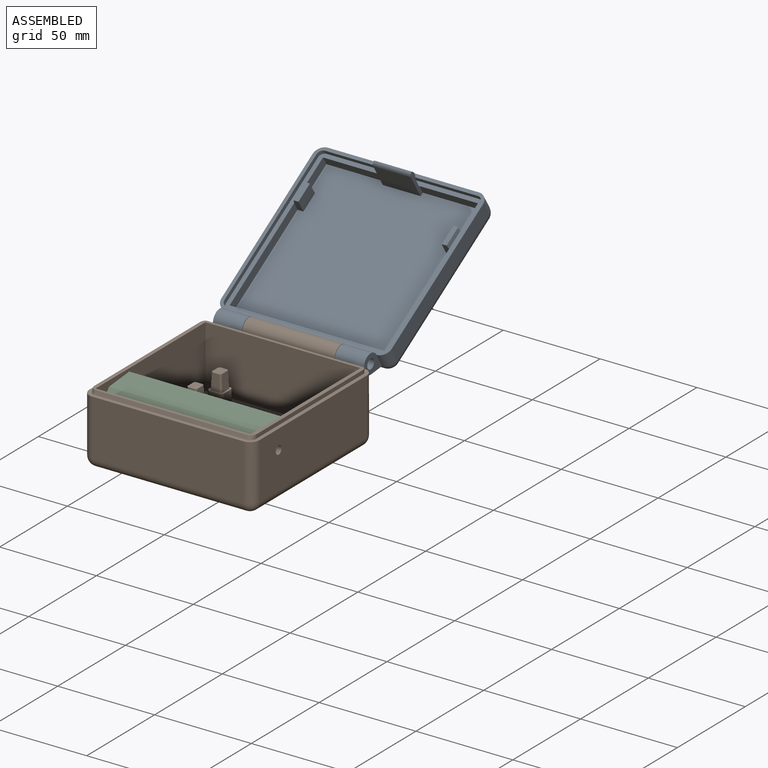
[diagram: assembled view]
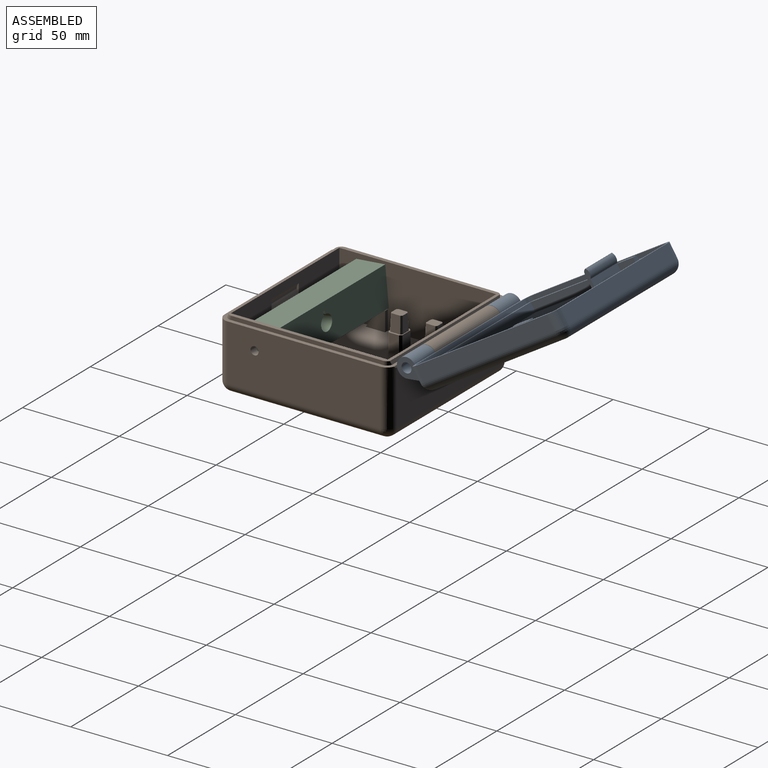
[diagram: assembled view, second angle]
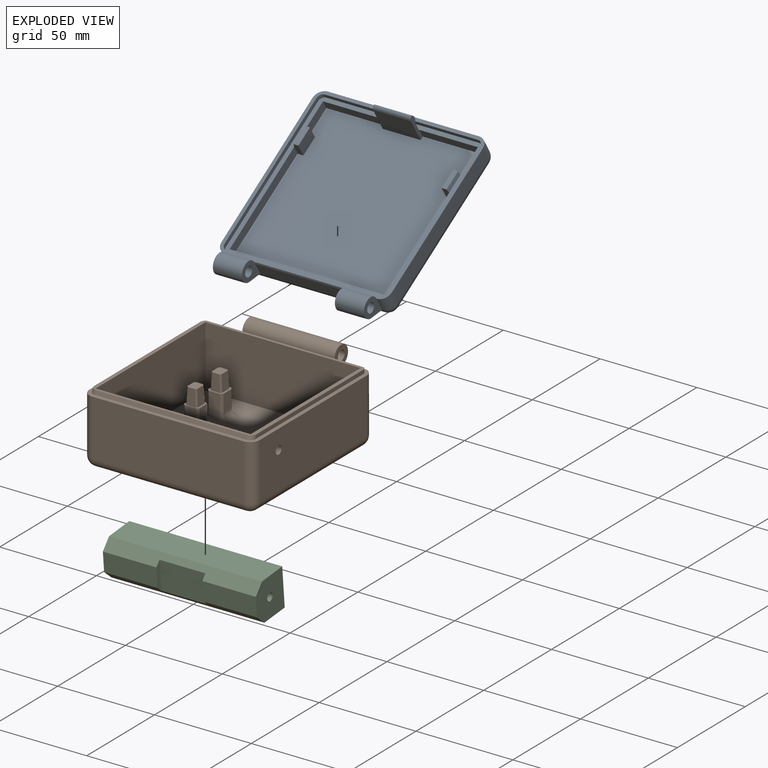
[diagram: exploded view]
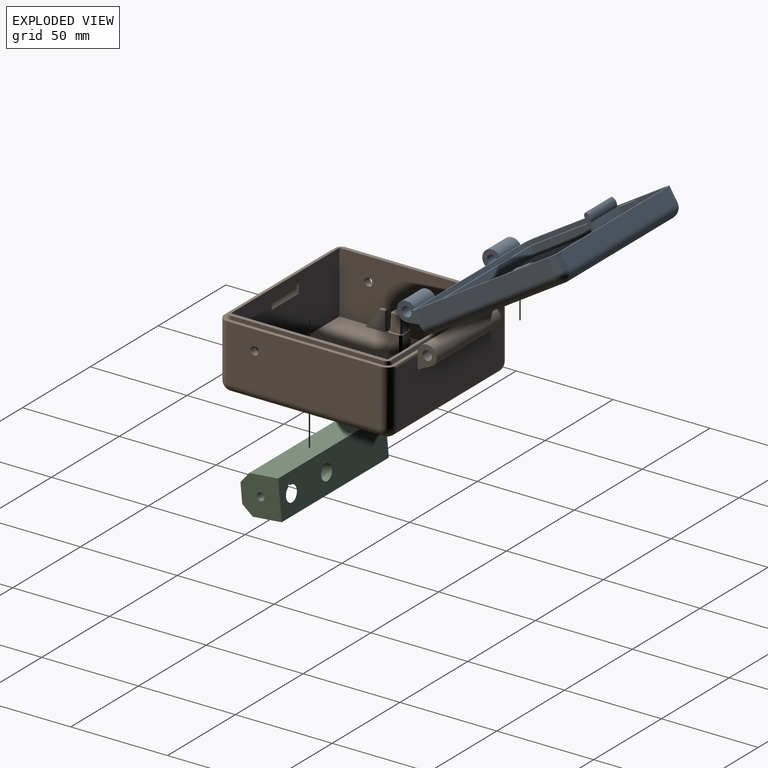
[diagram: exploded view, second angle]
ASSEMBLY  parts=3 mates=2
PART A: 63 faces, bbox 88x99x21.3 mm
  f0: plane 89x88mm, normal (0,0,-1), area 595.1mm2, adj f3,f16,f17,f18,f20,f22,f25,f31
  f1: cylinder r=2.55mm len=15mm, axis (1,0,0), area 240.3mm2, adj f47,f48
  f2: plane 15x7.19mm, normal (0,-0.44,0.9), area 120mm2, adj f3,f24,f47,f48
  f3: cylinder r=5mm len=15mm, axis (1,0,0), area 319.4mm2, adj f0,f2,f47,f48
  f4: plane 7x3mm, normal (0,1,0), area 20.4mm2, adj f7,f8,f56,f58,f60
  f5: plane 7x3mm, normal (0,1,0), area 20.5mm2, adj f6,f8,f9,f55,f59
  f6: plane 10x2.5mm, normal (0,0,-1), area 25mm2, adj f5,f54,f55,f59
  f7: plane 15x4.8mm, normal (1,0,0), area 72mm2, adj f4,f8,f13,f14
  f8: plane 81x80mm, normal (0,0,-1), area 6382.9mm2, adj f4,f5,f7,f9,f11,f12,f14,f36
  f9: plane 15x4.8mm, normal (-1,0,0), area 72mm2, adj f5,f8,f13,f37
  f10: plane 19.5x5.59mm, normal (0,1,0), area 109mm2, adj f11,f12,f13,f52
  f11: plane 15.3x2.7mm, normal (-1,0,0), area 29.5mm2, adj f8,f10,f13,f14,f50,f51,f52,f53
  f12: plane 15.3x2.7mm, normal (1,0,0), area 29.5mm2, adj f8,f10,f13,f37,f50,f51,f52,f53
  f13: plane 85.4x84.4mm, normal (0,0,-1), area 724.9mm2, adj f7,f9,f10,f11,f12,f14,f32,f33
  f14: plane 30.25x4.8mm, normal (0,-1,0), area 145.2mm2, adj f7,f8,f11,f13
  f15: cylinder r=2.55mm len=15mm, axis (1,0,0), area 240.3mm2, adj f46,f49
  f16: plane 78x8mm, normal (0,1,0), area 624mm2, adj f0,f22,f28,f31
  f17: plane 79x8mm, normal (-1,0,0), area 632mm2, adj f0,f25,f29,f31
  f18: plane 79x8mm, normal (1,0,0), area 632mm2, adj f0,f20,f22,f23
  f19: plane 79x78mm, normal (0,0,1), area 6162mm2, adj f23,f24,f28,f29
  f20: cylinder r=5mm len=8mm, axis (0,0,1), area 62.8mm2, adj f0,f18,f21,f47
  f21: sphere r=5mm, area 39.3mm2, adj f20,f23,f24
  f22: cylinder r=5mm len=8mm, axis (0,0,-1), area 62.8mm2, adj f0,f16,f18,f26
  f23: cylinder r=5mm len=79mm, axis (0,-1,0), area 620.5mm2, adj f18,f19,f21,f26
  f24: cylinder r=5mm len=78mm, axis (-1,0,0), area 612.6mm2, adj f2,f19,f21,f27,f44,f61
  f25: cylinder r=5mm len=8mm, axis (0,0,-1), area 62.8mm2, adj f0,f17,f27,f46
  f26: sphere r=5mm, area 39.3mm2, adj f22,f23,f28
  f27: sphere r=5mm, area 39.3mm2, adj f24,f25,f29
  f28: cylinder r=5mm len=78mm, axis (1,0,0), area 612.6mm2, adj f16,f19,f26,f30
  f29: cylinder r=5mm len=79mm, axis (0,1,0), area 620.5mm2, adj f17,f19,f27,f30
  f30: sphere r=5mm, area 39.3mm2, adj f28,f29,f31
  f31: cylinder r=5mm len=8mm, axis (0,0,1), area 62.8mm2, adj f0,f16,f17,f30
  f32: plane 79.8x2.2mm, normal (-1,0,0), area 175.6mm2, adj f0,f13,f40,f43
  f33: plane 78.8x2.2mm, normal (0,1,0), area 173.4mm2, adj f0,f13,f40,f41
  f34: plane 79.8x2.2mm, normal (1,0,0), area 175.6mm2, adj f0,f13,f41,f42
  f35: plane 78.8x2.2mm, normal (0,-1,0), area 173.4mm2, adj f0,f13,f42,f43
  f36: plane 56x4.8mm, normal (-1,0,0), area 268.8mm2, adj f8,f13,f39,f54
  f37: plane 30.25x4.8mm, normal (0,-1,0), area 145.2mm2, adj f8,f9,f12,f13
  f38: plane 56x4.8mm, normal (1,0,0), area 268.8mm2, adj f8,f13,f39,f57
  f39: plane 80x4.8mm, normal (0,1,0), area 384mm2, adj f8,f13,f36,f38
  f40: cylinder r=2.8mm len=2.8mm, axis (0,0,1), area 9.7mm2, adj f0,f13,f32,f33
  f41: cylinder r=2.8mm len=2.8mm, axis (0,0,-1), area 9.7mm2, adj f0,f13,f33,f34
  f42: cylinder r=2.8mm len=2.8mm, axis (0,0,1), area 9.7mm2, adj f0,f13,f34,f35
  f43: cylinder r=2.8mm len=2.8mm, axis (0,0,-1), area 9.7mm2, adj f0,f13,f32,f35
  f44: plane 15x7.19mm, normal (0,-0.44,0.9), area 120mm2, adj f24,f45,f46,f49
  f45: cylinder r=5mm len=15mm, axis (1,0,0), area 319.4mm2, adj f0,f44,f46,f49
  f46: plane 13x10mm, normal (-1,0,0), area 72.8mm2, adj f15,f25,f44,f45
  f47: plane 13x10mm, normal (1,0,0), area 72.8mm2, adj f1,f2,f3,f20
  f48: plane 13x10.3mm, normal (-1,0,0), area 73mm2, adj f0,f1,f2,f3,f61,f62
  f49: plane 13x10.3mm, normal (1,0,0), area 73mm2, adj f0,f15,f44,f45,f61,f62
  f50: plane 19.5x0.09mm, normal (0,1,0), area 1.8mm2, adj f11,f12,f52,f53
  f51: plane 19.5x13.32mm, normal (0,-1,0), area 259.8mm2, adj f8,f11,f12,f53
  f52: cylinder r=3.4mm len=19.5mm, axis (1,0,0), area 104.4mm2, adj f10,f11,f12,f50
  f53: cylinder r=2mm len=19.5mm, axis (1,0,0), area 55.4mm2, adj f11,f12,f50,f51
  f54: plane 7x3mm, normal (0,-1,0), area 20.4mm2, adj f6,f8,f36,f55,f59
  f55: plane 10x7mm, normal (-1,0,0), area 70mm2, adj f5,f6,f8,f54
  f56: plane 10x7mm, normal (1,0,0), area 70mm2, adj f4,f8,f57,f58
  f57: plane 7x3mm, normal (0,-1,0), area 20.5mm2, adj f8,f38,f56,f58,f60
  f58: plane 10x2.5mm, normal (0,0,-1), area 25mm2, adj f4,f56,f57,f60
  f59: plane 10x2.2mm, normal (0.98,0,-0.22), area 22.6mm2, adj f5,f6,f13,f54
  f60: plane 10x2.2mm, normal (-0.98,0,-0.22), area 22.6mm2, adj f4,f13,f57,f58
  f61: plane 48x7mm, normal (0,-1,0), area 336mm2, adj f24,f48,f49,f62
  f62: plane 48x1mm, normal (0,-0.96,-0.29), area 50.1mm2, adj f0,f48,f49,f61
PART B: 104 faces, bbox 88x99x39.2 mm
  f0: plane 10x10mm, normal (-1,0,0), area 65mm2, adj f17,f29,f30,f84
  f1: plane 3x2mm, normal (0,0,1), area 6mm2, adj f22,f27,f28,f83
  f2: plane 89x88mm, normal (0,0,1), area 668.9mm2, adj f5,f7,f18,f19,f20,f43,f45,f48
  f3: cylinder r=2.5mm len=47.6mm, axis (-1,0,0), area 747.7mm2, adj f78,f79
  f4: plane 47.6x7.19mm, normal (0,0.44,-0.9), area 380.8mm2, adj f5,f6,f78,f79
  f5: cylinder r=5mm len=47.6mm, axis (-1,0,0), area 1023.1mm2, adj f2,f4,f78,f79
  f6: plane 78x28mm, normal (0,1,0), area 1860.3mm2, adj f4,f45,f51,f54,f78,f79,f102,f103
  f7: plane 78.81x2mm, normal (-1,0,0), area 156.9mm2, adj f2,f56,f75,f77
  f8: plane 6x5.1mm, normal (0,0,1), area 29.6mm2, adj f9,f10,f14,f42,f57,f58,f59,f60
  f9: plane 8.5x5.1mm, normal (-1,0,0.05), area 41.3mm2, adj f8,f35,f58,f60
  f10: plane 8.5x5.1mm, normal (1,0,0.05), area 41.3mm2, adj f8,f35,f57,f59
  f11: plane 6x5.1mm, normal (0,0,1), area 29.6mm2, adj f12,f13,f40,f41,f61,f62,f63,f64
  f12: plane 8.5x4.6mm, normal (0,1,0.03), area 35.3mm2, adj f11,f15,f61,f62
  f13: plane 8.5x4.6mm, normal (0,-1,0.03), area 35.3mm2, adj f11,f15,f63,f64
  f14: plane 8.5x4.6mm, normal (0,-1,0.03), area 35.3mm2, adj f8,f35,f57,f58
  f15: plane 8x7.21mm, normal (0,0,1), area 17.7mm2, adj f12,f13,f36,f37,f38,f39,f40,f41
  f16: plane 81x32mm, normal (-1,0,0), area 2513.1mm2, adj f17,f23,f24,f25,f29,f30,f56,f84
  f17: plane 81x80mm, normal (0,0,1), area 5985.3mm2, adj f0,f16,f22,f23,f24,f27,f28,f29
  f18: plane 79x29mm, normal (1,0,0), area 2277.1mm2, adj f2,f25,f48,f52,f54
  f19: plane 79x29mm, normal (-1,0,0), area 2277.1mm2, adj f2,f26,f43,f45,f46
  f20: plane 78x29mm, normal (0,-1,0), area 2262mm2, adj f2,f43,f47,f48
  f21: plane 79x78mm, normal (0,0,-1), area 6162mm2, adj f46,f47,f51,f52
  f22: plane 81x32mm, normal (1,0,0), area 2513.1mm2, adj f1,f17,f23,f24,f26,f28,f56,f83
  f23: plane 80x32mm, normal (0,-1,0), area 2560mm2, adj f16,f17,f22,f56
  f24: plane 80x32mm, normal (0,1,0), area 2462mm2, adj f16,f17,f22,f56,f80,f81,f82
  f25: cylinder r=2.1mm len=4.2mm, axis (-1,0,0), area 52.8mm2, adj f16,f18
  f26: cylinder r=2.1mm len=4.2mm, axis (1,0,0), area 52.8mm2, adj f19,f22
  f27: plane 10x10mm, normal (1,0,0), area 65mm2, adj f1,f17,f28,f83
  f28: plane 10x2mm, normal (0,1,0), area 20mm2, adj f1,f17,f22,f27
  f29: plane 10x2mm, normal (0,1,0), area 20mm2, adj f0,f16,f17,f30
  f30: plane 3x2mm, normal (0,0,1), area 6mm2, adj f0,f16,f29,f84
  f31: plane 9x6mm, normal (0,1,0), area 54mm2, adj f35,f65,f67,f86
  f32: plane 9x6mm, normal (-1,0,0), area 54mm2, adj f35,f65,f70,f87
  f33: plane 9x6mm, normal (0,-1,0), area 54mm2, adj f35,f70,f72,f91
  f34: plane 9x6mm, normal (1,0,0), area 54mm2, adj f35,f67,f72,f90
  f35: plane 8x8mm, normal (0,0,1), area 24mm2, adj f9,f10,f14,f31,f32,f33,f34,f42
  f36: plane 9x6mm, normal (0,1,0), area 54mm2, adj f15,f66,f71,f98
  f37: plane 9x5.21mm, normal (-1,0,0), area 46.9mm2, adj f15,f66,f68,f94
  f38: plane 9x6mm, normal (0,-1,0), area 54mm2, adj f15,f68,f69,f95
  f39: plane 9x5.21mm, normal (1,0,0), area 46.9mm2, adj f15,f69,f71,f99
  f40: plane 8.5x5.1mm, normal (-1,0,0.05), area 41.3mm2, adj f11,f15,f61,f63
  f41: plane 8.5x5.1mm, normal (1,0,0.05), area 41.3mm2, adj f11,f15,f62,f64
  f42: plane 8.5x4.6mm, normal (0,1,0.03), area 35.3mm2, adj f8,f35,f59,f60
  f43: cylinder r=5mm len=29mm, axis (0,0,1), area 227.8mm2, adj f2,f19,f20,f44
  f44: sphere r=5mm, area 39.3mm2, adj f43,f46,f47
  f45: cylinder r=5mm len=29mm, axis (0,0,-1), area 226.6mm2, adj f2,f6,f19,f49,f102
  f46: cylinder r=5mm len=79mm, axis (0,-1,0), area 620.5mm2, adj f19,f21,f44,f49
  f47: cylinder r=5mm len=78mm, axis (1,0,0), area 612.6mm2, adj f20,f21,f44,f50
  f48: cylinder r=5mm len=29mm, axis (0,0,-1), area 227.8mm2, adj f2,f18,f20,f50
  f49: sphere r=5mm, area 39.3mm2, adj f45,f46,f51
  f50: sphere r=5mm, area 39.3mm2, adj f47,f48,f52
  f51: cylinder r=5mm len=78mm, axis (-1,0,0), area 612.6mm2, adj f6,f21,f49,f53
  f52: cylinder r=5mm len=79mm, axis (0,1,0), area 620.5mm2, adj f18,f21,f50,f53
  f53: sphere r=5mm, area 39.3mm2, adj f51,f52,f54
  f54: cylinder r=5mm len=29mm, axis (0,0,1), area 226.6mm2, adj f2,f6,f18,f53,f103
  f55: plane 78.81x2mm, normal (1,0,0), area 156.9mm2, adj f2,f56,f74,f76
  f56: plane 84x83.79mm, normal (0,0,1), area 551.9mm2, adj f7,f16,f22,f23,f24,f55,f73,f74
  f57: plane 8.5x1.15mm, normal (0.71,-0.71,0.06), area 8.4mm2, adj f8,f10,f14,f35
  f58: plane 8.5x1.15mm, normal (-0.71,-0.71,0.06), area 8.4mm2, adj f8,f9,f14,f35
  f59: plane 8.5x1.15mm, normal (0.71,0.71,0.06), area 8.4mm2, adj f8,f10,f35,f42
  f60: plane 8.5x1.15mm, normal (-0.71,0.71,0.06), area 8.4mm2, adj f8,f9,f35,f42
  f61: plane 8.5x1.15mm, normal (-0.71,0.71,0.06), area 8.4mm2, adj f11,f12,f15,f40
  f62: plane 8.5x1.15mm, normal (0.71,0.71,0.06), area 8.4mm2, adj f11,f12,f15,f41
  f63: plane 8.5x1.15mm, normal (-0.71,-0.71,0.06), area 8.4mm2, adj f11,f13,f15,f40
  f64: plane 8.5x1.15mm, normal (0.71,-0.71,0.06), area 8.4mm2, adj f11,f13,f15,f41
  f65: plane 9x1mm, normal (-0.71,0.71,0), area 12.7mm2, adj f31,f32,f35,f85
  f66: plane 9x1mm, normal (-0.71,0.71,0), area 12.7mm2, adj f15,f36,f37,f96
  f67: plane 9x1mm, normal (0.71,0.71,0), area 12.7mm2, adj f31,f34,f35,f88
  f68: plane 9x1mm, normal (-0.71,-0.71,0), area 12.7mm2, adj f15,f37,f38,f93
  f69: plane 9x1mm, normal (0.71,-0.71,0), area 12.7mm2, adj f15,f38,f39,f97
  f70: plane 9x1mm, normal (-0.71,-0.71,0), area 12.7mm2, adj f32,f33,f35,f89
  f71: plane 9x1mm, normal (0.71,0.71,0), area 12.7mm2, adj f15,f36,f39,f100
  f72: plane 9x1mm, normal (0.71,-0.71,0), area 12.7mm2, adj f33,f34,f35,f92
  f73: plane 78x2mm, normal (0,-0.94,0.34), area 165.7mm2, adj f2,f56,f74,f75
  f74: cylinder r=3mm len=4.02mm, axis (0,-0.34,-0.94), area 10mm2, adj f2,f55,f56,f73
  f75: cylinder r=3mm len=4.02mm, axis (0,-0.34,-0.94), area 10mm2, adj f2,f7,f56,f73
  f76: cylinder r=3mm len=3mm, axis (0,0,-1), area 7.1mm2, adj f2,f55,f56,f101
  f77: cylinder r=3mm len=3mm, axis (0,0,1), area 7.1mm2, adj f2,f7,f56,f101
  f78: plane 13x10.3mm, normal (1,0,0), area 73.7mm2, adj f2,f3,f4,f5,f6,f103
  f79: plane 13x10.3mm, normal (-1,0,0), area 73.7mm2, adj f2,f3,f4,f5,f6,f102
  f80: plane 4.9x1mm, normal (1,0,0), area 3.4mm2, adj f24,f82
  f81: plane 4.9x1mm, normal (-1,0,0), area 3.4mm2, adj f24,f82
  f82: cylinder r=3.5mm len=20mm, axis (1,0,0), area 108.5mm2, adj f24,f80,f81
  f83: plane 10x7mm, normal (0,-0.82,0.57), area 24.4mm2, adj f1,f17,f22,f27
  f84: plane 10x7mm, normal (0,-0.82,0.57), area 24.4mm2, adj f0,f16,f17,f30
  f85: cylinder r=4mm len=6.17mm, axis (-0.71,-0.71,0), area 16.5mm2, adj f17,f65,f86,f87
  f86: cylinder r=4mm len=9.31mm, axis (-1,0,0), area 45.3mm2, adj f17,f31,f85,f88
  f87: cylinder r=4mm len=9.31mm, axis (0,-1,0), area 45.3mm2, adj f17,f32,f85,f89
  f88: cylinder r=4mm len=6.17mm, axis (0.71,-0.71,0), area 16.5mm2, adj f17,f67,f86,f90
  f89: cylinder r=4mm len=6.17mm, axis (-0.71,0.71,0), area 16.5mm2, adj f17,f70,f87,f91
  f90: cylinder r=4mm len=9.31mm, axis (0,1,0), area 45.3mm2, adj f17,f34,f88,f92
  f91: cylinder r=4mm len=9.31mm, axis (1,0,0), area 45.3mm2, adj f17,f33,f89,f92
  f92: cylinder r=4mm len=6.17mm, axis (0.71,0.71,0), area 16.5mm2, adj f17,f72,f90,f91
  f93: cylinder r=4mm len=6.17mm, axis (-0.71,0.71,0), area 16.5mm2, adj f17,f68,f94,f95
  f94: cylinder r=4mm len=8.53mm, axis (0,-1,0), area 40.3mm2, adj f17,f37,f93,f96
  f95: cylinder r=4mm len=9.31mm, axis (1,0,0), area 45.3mm2, adj f17,f38,f93,f97
  f96: cylinder r=4mm len=6.17mm, axis (-0.71,-0.71,0), area 16.5mm2, adj f17,f66,f94,f98
  f97: cylinder r=4mm len=6.17mm, axis (0.71,0.71,0), area 16.5mm2, adj f17,f69,f95,f99
  f98: cylinder r=4mm len=9.31mm, axis (-1,0,0), area 45.3mm2, adj f17,f36,f96,f100
  f99: cylinder r=4mm len=8.53mm, axis (0,1,0), area 40.3mm2, adj f17,f39,f97,f100
  f100: cylinder r=4mm len=6.17mm, axis (0.71,-0.71,0), area 16.5mm2, adj f17,f71,f98,f99
  f101: plane 81.32x2mm, normal (0,0.97,0.24), area 165.4mm2, adj f2,f56,f76,f77
  f102: plane 16.91x1mm, normal (0,0.96,0.29), area 17.1mm2, adj f2,f6,f45,f79
  f103: plane 16.91x1mm, normal (0,0.96,0.29), area 17.1mm2, adj f2,f6,f54,f78
PART C: 25 faces, bbox 79x20x20 mm
  f0: plane 27.65x10mm, normal (0,1,0), area 276.5mm2, adj f5,f10,f11,f22
  f1: plane 79x20mm, normal (0,-1,0), area 1474.2mm2, adj f2,f3,f4,f5,f12,f13,f14,f15
  f2: plane 79x15mm, normal (0,0,-1), area 1185mm2, adj f1,f3,f5,f11
  f3: plane 20x20mm, normal (1,0,0), area 362.4mm2, adj f1,f2,f4,f6,f8,f10,f11
  f4: plane 79x15mm, normal (0,0,1), area 1185mm2, adj f1,f3,f5,f10
  f5: plane 20x20mm, normal (-1,0,0), area 362.4mm2, adj f0,f1,f2,f4,f7,f10,f11
  f6: plane 27.65x10mm, normal (0,1,0), area 276.5mm2, adj f3,f10,f11,f24
  f7: cylinder r=2mm len=5.04mm, axis (-1,0,0), area 59.9mm2, adj f5,f12
  f8: cylinder r=2mm len=7mm, axis (1,0,0), area 88mm2, adj f3,f9
  f9: plane 4x4mm, normal (1,0,0), area 12.6mm2, adj f8
  f10: plane 79x5mm, normal (0,0.71,0.71), area 474.8mm2, adj f0,f3,f4,f5,f6,f22,f23,f24
  f11: plane 79x5mm, normal (0,0.71,-0.71), area 474.8mm2, adj f0,f2,f3,f5,f6,f22,f23,f24
  f12: cylinder r=4mm len=12mm, axis (0,-1,0), area 272.9mm2, adj f1,f7,f14,f15,f16
  f13: plane 12x1.26mm, normal (0.24,0,-0.97), area 15.6mm2, adj f1,f14,f15,f16
  f14: plane 12x1.99mm, normal (0.97,0,0.24), area 24.6mm2, adj f1,f12,f13,f16
  f15: plane 12x1.99mm, normal (-0.97,0,-0.24), area 24.6mm2, adj f1,f12,f13,f16
  f16: plane 9.98x8mm, normal (0,-1,0), area 52.9mm2, adj f12,f13,f14,f15
  f17: cylinder r=4mm len=12mm, axis (0,-1,0), area 285.9mm2, adj f1,f18,f20,f21
  f18: plane 12x1.99mm, normal (-0.97,0,-0.24), area 24.6mm2, adj f1,f17,f19,f21
  f19: plane 12x1.26mm, normal (0.24,0,-0.97), area 15.6mm2, adj f1,f18,f20,f21
  f20: plane 12x1.99mm, normal (0.97,0,0.24), area 24.6mm2, adj f1,f17,f19,f21
  f21: plane 9.98x8mm, normal (0,-1,0), area 52.9mm2, adj f17,f18,f19,f20
  f22: plane 15x2.5mm, normal (1,0,0), area 31.3mm2, adj f0,f10,f11,f23
  f23: plane 23.69x15mm, normal (0,1,0), area 355.4mm2, adj f10,f11,f22,f24
  f24: plane 15x2.5mm, normal (-1,0,0), area 31.3mm2, adj f6,f10,f11,f23
PLACE A rot(axis=(0,-0.96,-0.27),180deg) t=(-255.09,207.68,121.03)mm
PLACE B t=(58.01,22.16,-26.24)mm fixed
PLACE C rot(axis=(0,-0.05,1),180deg) t=(-277.67,-56.12,-38.91)mm
MATE revolute C.f7 <-> B.f25  axis (-1,0,0) through (-189.75,-49.48,-2.24)mm
MATE revolute A.f1 <-> B.f3  axis (-1,0,0) through (-174.25,25.52,7.96)mm
